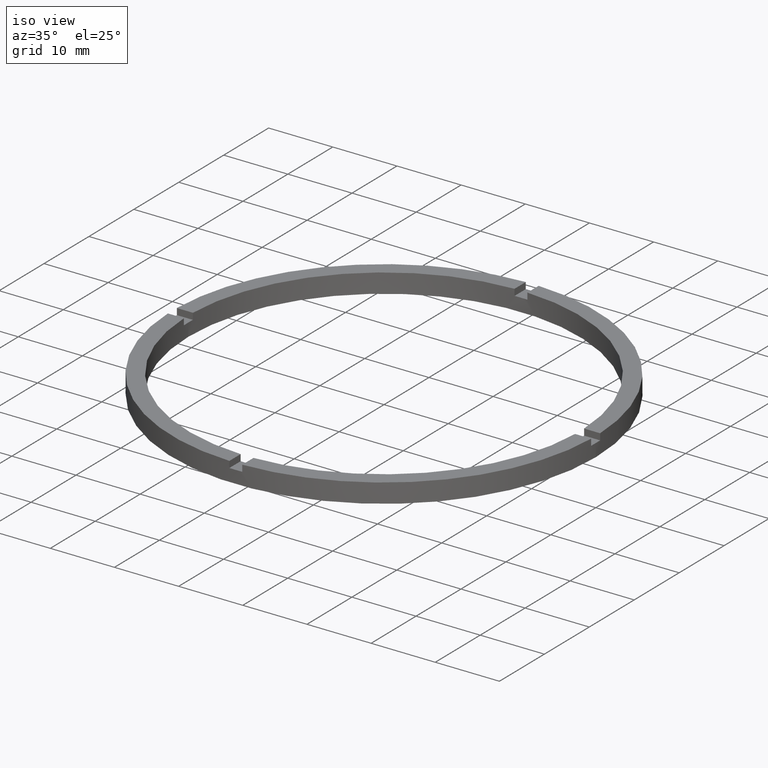
[diagram: clean part render]
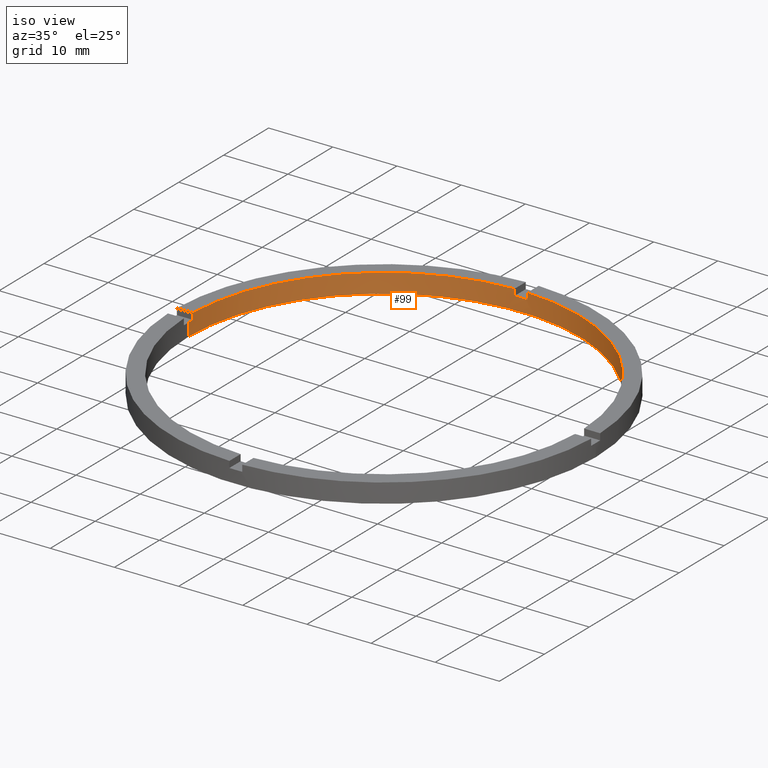
[diagram: same view with one face highlighted and labeled with its STEP entity id]
A machine part, iso view. The second image highlights one B-rep face of the part: STEP entity #99.
In plain terms, the highlighted cylindrical surface (partial cylindrical patch) has radius 30.5 mm, axis along (-0, -0, -1).
Its self-contained STEP definition (entity closure, byte-faithful):
#5 = ORIENTED_EDGE ( 'NONE', *, *, #474, .F. ) ;
#6 = DIRECTION ( 'NONE',  ( 0.000000000000000000, 0.000000000000000000, 1.000000000000000000 ) ) ;
#30 = DIRECTION ( 'NONE',  ( 1.000000000000000000, 0.000000000000000000, 0.000000000000000000 ) ) ;
#37 = CARTESIAN_POINT ( 'NONE',  ( -1.000000000000024647, 30.48360214935236101, 3.000000000000000000 ) ) ;
#41 = VERTEX_POINT ( 'NONE', #178 ) ;
#62 = VECTOR ( 'NONE', #453, 1000.000000000000000 ) ;
#65 = CIRCLE ( 'NONE', #402, 30.50000000000000000 ) ;
#74 = VECTOR ( 'NONE', #155, 1000.000000000000000 ) ;
#77 = VERTEX_POINT ( 'NONE', #666 ) ;
#79 = DIRECTION ( 'NONE',  ( 1.000000000000000000, 0.000000000000000000, 0.000000000000000000 ) ) ;
#95 = EDGE_CURVE ( 'NONE', #294, #364, #128, .T. ) ;
#99 = ADVANCED_FACE ( 'NONE', ( #405 ), #392, .F. ) ;
#109 = CARTESIAN_POINT ( 'NONE',  ( -30.48360214935236101, 0.9999999999999744649, 3.000000000000000000 ) ) ;
#113 = CARTESIAN_POINT ( 'NONE',  ( 30.50000000000000000, 3.735172737399427541E-15, 0.000000000000000000 ) ) ;
#128 = CIRCLE ( 'NONE', #651, 30.50000000000000000 ) ;
#138 = CIRCLE ( 'NONE', #734, 30.50000000000000000 ) ;
#155 = DIRECTION ( 'NONE',  ( -0.000000000000000000, -0.000000000000000000, -1.000000000000000000 ) ) ;
#160 = CARTESIAN_POINT ( 'NONE',  ( 30.48360214935236456, 0.9999999999998414602, 3.000000000000000000 ) ) ;
#177 = CARTESIAN_POINT ( 'NONE',  ( 0.000000000000000000, 0.000000000000000000, 2.000000000000000000 ) ) ;
#178 = CARTESIAN_POINT ( 'NONE',  ( -1.000000000000024647, 30.48360214935236101, 2.000000000000000000 ) ) ;
#184 = EDGE_CURVE ( 'NONE', #292, #218, #138, .T. ) ;
#204 = EDGE_CURVE ( 'NONE', #396, #364, #403, .T. ) ;
#207 = VERTEX_POINT ( 'NONE', #424 ) ;
#214 = AXIS2_PLACEMENT_3D ( 'NONE', #466, #714, #662 ) ;
#218 = VERTEX_POINT ( 'NONE', #473 ) ;
#223 = CARTESIAN_POINT ( 'NONE',  ( 0.9999999999999753530, 30.48360214935236101, 3.000000000000000000 ) ) ;
#245 = EDGE_CURVE ( 'NONE', #623, #218, #302, .T. ) ;
#249 = CARTESIAN_POINT ( 'NONE',  ( 30.50000000000000000, 3.735172737399427541E-15, 3.000000000000000000 ) ) ;
#262 = DIRECTION ( 'NONE',  ( -1.000000000000000000, 0.000000000000000000, 0.000000000000000000 ) ) ;
#274 = DIRECTION ( 'NONE',  ( 0.000000000000000000, 0.000000000000000000, 1.000000000000000000 ) ) ;
#283 = ORIENTED_EDGE ( 'NONE', *, *, #493, .F. ) ;
#284 = EDGE_CURVE ( 'NONE', #396, #41, #293, .T. ) ;
#285 = CARTESIAN_POINT ( 'NONE',  ( -1.000000000000024647, 30.48360214935236101, 3.000000000000000000 ) ) ;
#290 = CARTESIAN_POINT ( 'NONE',  ( 0.000000000000000000, 0.000000000000000000, 2.000000000000000000 ) ) ;
#292 = VERTEX_POINT ( 'NONE', #37 ) ;
#293 = CIRCLE ( 'NONE', #739, 30.50000000000000000 ) ;
#294 = VERTEX_POINT ( 'NONE', #756 ) ;
#296 = ORIENTED_EDGE ( 'NONE', *, *, #511, .T. ) ;
#298 = AXIS2_PLACEMENT_3D ( 'NONE', #561, #508, #262 ) ;
#302 = LINE ( 'NONE', #109, #330 ) ;
#307 = CIRCLE ( 'NONE', #463, 30.50000000000000000 ) ;
#311 = LINE ( 'NONE', #389, #74 ) ;
#313 = DIRECTION ( 'NONE',  ( -0.000000000000000000, -0.000000000000000000, -1.000000000000000000 ) ) ;
#315 = LINE ( 'NONE', #249, #594 ) ;
#323 = LINE ( 'NONE', #160, #62 ) ;
#330 = VECTOR ( 'NONE', #359, 1000.000000000000000 ) ;
#356 = ORIENTED_EDGE ( 'NONE', *, *, #204, .F. ) ;
#359 = DIRECTION ( 'NONE',  ( 0.000000000000000000, 0.000000000000000000, 1.000000000000000000 ) ) ;
#362 = VERTEX_POINT ( 'NONE', #638 ) ;
#364 = VERTEX_POINT ( 'NONE', #223 ) ;
#378 = ORIENTED_EDGE ( 'NONE', *, *, #95, .T. ) ;
#384 = ORIENTED_EDGE ( 'NONE', *, *, #184, .T. ) ;
#389 = CARTESIAN_POINT ( 'NONE',  ( -30.50000000000000000, 0.000000000000000000, 3.000000000000000000 ) ) ;
#392 = CYLINDRICAL_SURFACE ( 'NONE', #298, 30.50000000000000000 ) ;
#396 = VERTEX_POINT ( 'NONE', #743 ) ;
#402 = AXIS2_PLACEMENT_3D ( 'NONE', #177, #753, #672 ) ;
#403 = LINE ( 'NONE', #660, #656 ) ;
#405 = FACE_OUTER_BOUND ( 'NONE', #628, .T. ) ;
#420 = LINE ( 'NONE', #285, #698 ) ;
#424 = CARTESIAN_POINT ( 'NONE',  ( -30.50000000000000000, 0.000000000000000000, 0.000000000000000000 ) ) ;
#430 = CARTESIAN_POINT ( 'NONE',  ( 0.000000000000000000, 0.000000000000000000, 3.000000000000000000 ) ) ;
#432 = DIRECTION ( 'NONE',  ( 0.000000000000000000, -0.000000000000000000, 1.000000000000000000 ) ) ;
#442 = EDGE_CURVE ( 'NONE', #77, #557, #307, .T. ) ;
#453 = DIRECTION ( 'NONE',  ( -0.000000000000000000, -0.000000000000000000, -1.000000000000000000 ) ) ;
#463 = AXIS2_PLACEMENT_3D ( 'NONE', #290, #6, #79 ) ;
#466 = CARTESIAN_POINT ( 'NONE',  ( 0.000000000000000000, 0.000000000000000000, 0.000000000000000000 ) ) ;
#473 = CARTESIAN_POINT ( 'NONE',  ( -30.48360214935236101, 0.9999999999999744649, 3.000000000000000000 ) ) ;
#474 = EDGE_CURVE ( 'NONE', #294, #557, #323, .T. ) ;
#482 = DIRECTION ( 'NONE',  ( -0.000000000000000000, -0.000000000000000000, -1.000000000000000000 ) ) ;
#489 = EDGE_CURVE ( 'NONE', #362, #207, #311, .T. ) ;
#493 = EDGE_CURVE ( 'NONE', #77, #554, #315, .T. ) ;
#508 = DIRECTION ( 'NONE',  ( -0.000000000000000000, -0.000000000000000000, -1.000000000000000000 ) ) ;
#511 = EDGE_CURVE ( 'NONE', #623, #362, #65, .T. ) ;
#521 = CARTESIAN_POINT ( 'NONE',  ( -30.48360214935236101, 0.9999999999999744649, 2.000000000000000000 ) ) ;
#533 = CIRCLE ( 'NONE', #214, 30.50000000000000000 ) ;
#540 = ORIENTED_EDGE ( 'NONE', *, *, #548, .F. ) ;
#541 = ORIENTED_EDGE ( 'NONE', *, *, #245, .F. ) ;
#546 = ORIENTED_EDGE ( 'NONE', *, *, #489, .T. ) ;
#548 = EDGE_CURVE ( 'NONE', #554, #207, #533, .T. ) ;
#554 = VERTEX_POINT ( 'NONE', #113 ) ;
#557 = VERTEX_POINT ( 'NONE', #723 ) ;
#561 = CARTESIAN_POINT ( 'NONE',  ( 0.000000000000000000, 0.000000000000000000, 3.000000000000000000 ) ) ;
#578 = DIRECTION ( 'NONE',  ( 0.000000000000000000, 0.000000000000000000, 1.000000000000000000 ) ) ;
#594 = VECTOR ( 'NONE', #313, 1000.000000000000000 ) ;
#618 = ORIENTED_EDGE ( 'NONE', *, *, #284, .T. ) ;
#621 = ORIENTED_EDGE ( 'NONE', *, *, #745, .F. ) ;
#623 = VERTEX_POINT ( 'NONE', #521 ) ;
#626 = ORIENTED_EDGE ( 'NONE', *, *, #442, .T. ) ;
#628 = EDGE_LOOP ( 'NONE', ( #283, #626, #5, #378, #356, #618, #621, #384, #541, #296, #546, #540 ) ) ;
#629 = CARTESIAN_POINT ( 'NONE',  ( 0.000000000000000000, 0.000000000000000000, 2.000000000000000000 ) ) ;
#638 = CARTESIAN_POINT ( 'NONE',  ( -30.50000000000000000, 0.000000000000000000, 2.000000000000000000 ) ) ;
#651 = AXIS2_PLACEMENT_3D ( 'NONE', #430, #764, #30 ) ;
#656 = VECTOR ( 'NONE', #274, 1000.000000000000000 ) ;
#660 = CARTESIAN_POINT ( 'NONE',  ( 0.9999999999999753530, 30.48360214935236101, 3.000000000000000000 ) ) ;
#662 = DIRECTION ( 'NONE',  ( 1.000000000000000000, 0.000000000000000000, 0.000000000000000000 ) ) ;
#666 = CARTESIAN_POINT ( 'NONE',  ( 30.50000000000000000, 3.735172737399427541E-15, 2.000000000000000000 ) ) ;
#672 = DIRECTION ( 'NONE',  ( 1.000000000000000000, 0.000000000000000000, 0.000000000000000000 ) ) ;
#698 = VECTOR ( 'NONE', #482, 1000.000000000000000 ) ;
#714 = DIRECTION ( 'NONE',  ( 0.000000000000000000, 0.000000000000000000, 1.000000000000000000 ) ) ;
#723 = CARTESIAN_POINT ( 'NONE',  ( 30.48360214935236456, 0.9999999999998414602, 2.000000000000000000 ) ) ;
#732 = DIRECTION ( 'NONE',  ( 1.000000000000000000, 0.000000000000000000, 0.000000000000000000 ) ) ;
#733 = CARTESIAN_POINT ( 'NONE',  ( 0.000000000000000000, 0.000000000000000000, 3.000000000000000000 ) ) ;
#734 = AXIS2_PLACEMENT_3D ( 'NONE', #733, #578, #768 ) ;
#739 = AXIS2_PLACEMENT_3D ( 'NONE', #629, #432, #732 ) ;
#743 = CARTESIAN_POINT ( 'NONE',  ( 0.9999999999999753530, 30.48360214935236101, 2.000000000000000000 ) ) ;
#745 = EDGE_CURVE ( 'NONE', #292, #41, #420, .T. ) ;
#753 = DIRECTION ( 'NONE',  ( 0.000000000000000000, 0.000000000000000000, 1.000000000000000000 ) ) ;
#756 = CARTESIAN_POINT ( 'NONE',  ( 30.48360214935236456, 0.9999999999998414602, 3.000000000000000000 ) ) ;
#764 = DIRECTION ( 'NONE',  ( 0.000000000000000000, 0.000000000000000000, 1.000000000000000000 ) ) ;
#768 = DIRECTION ( 'NONE',  ( 1.000000000000000000, 0.000000000000000000, 0.000000000000000000 ) ) ;